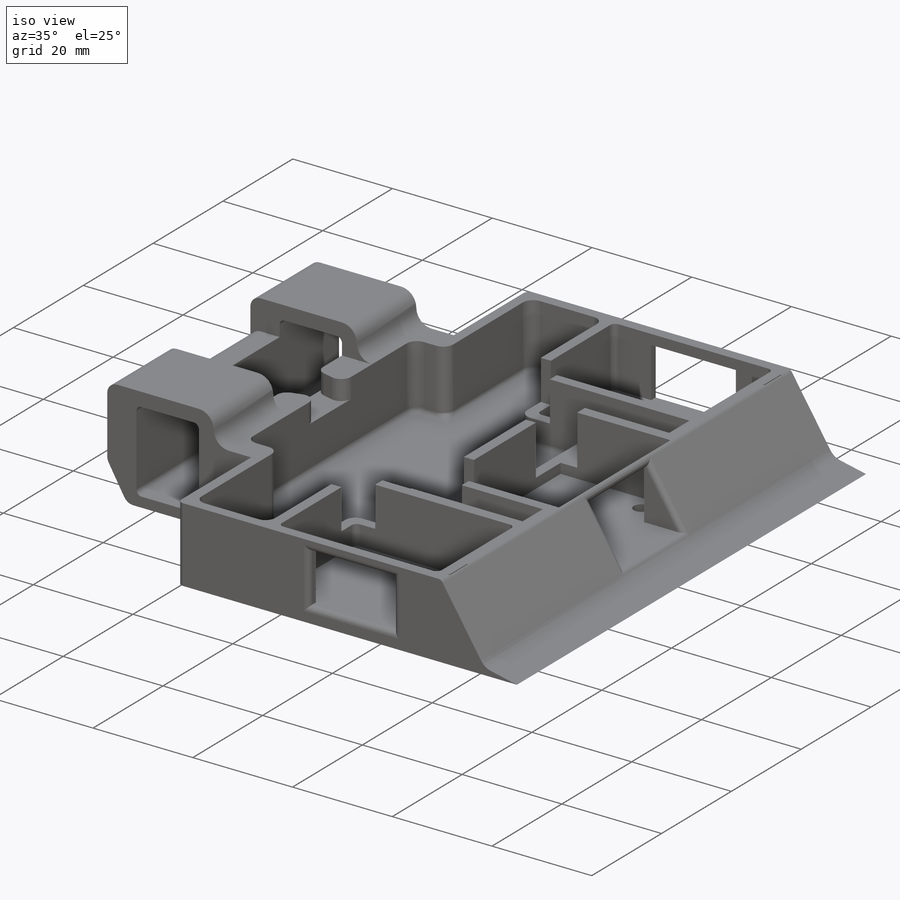
[diagram: iso view]
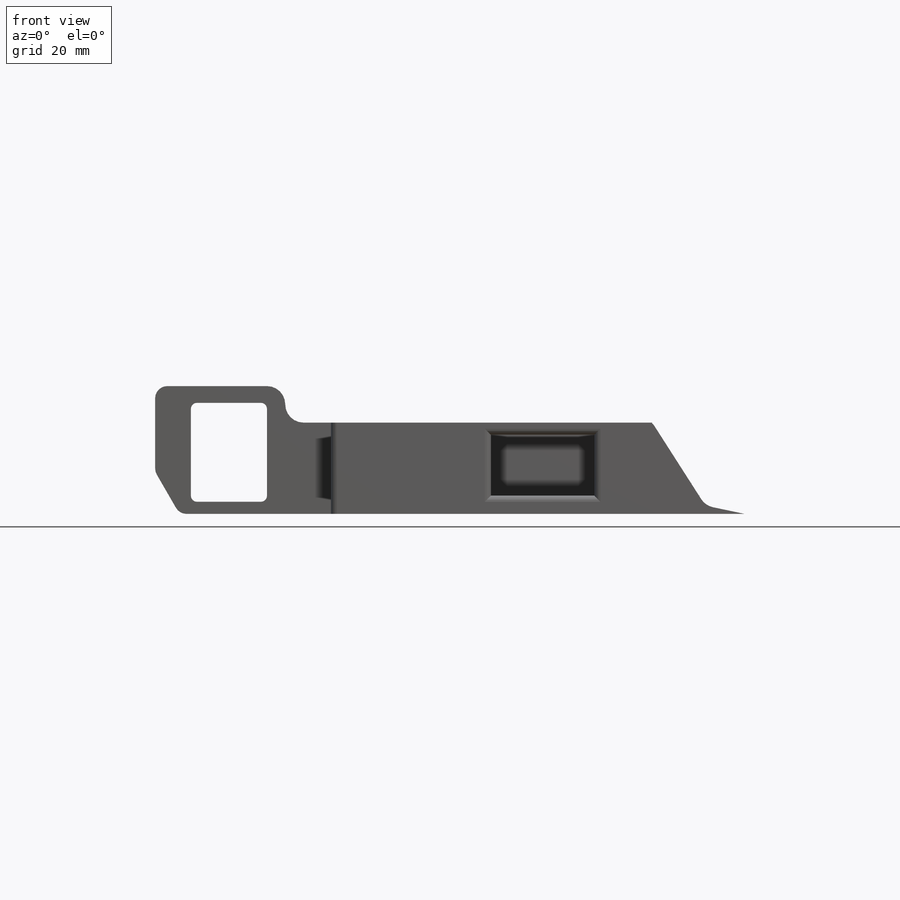
[diagram: front view]
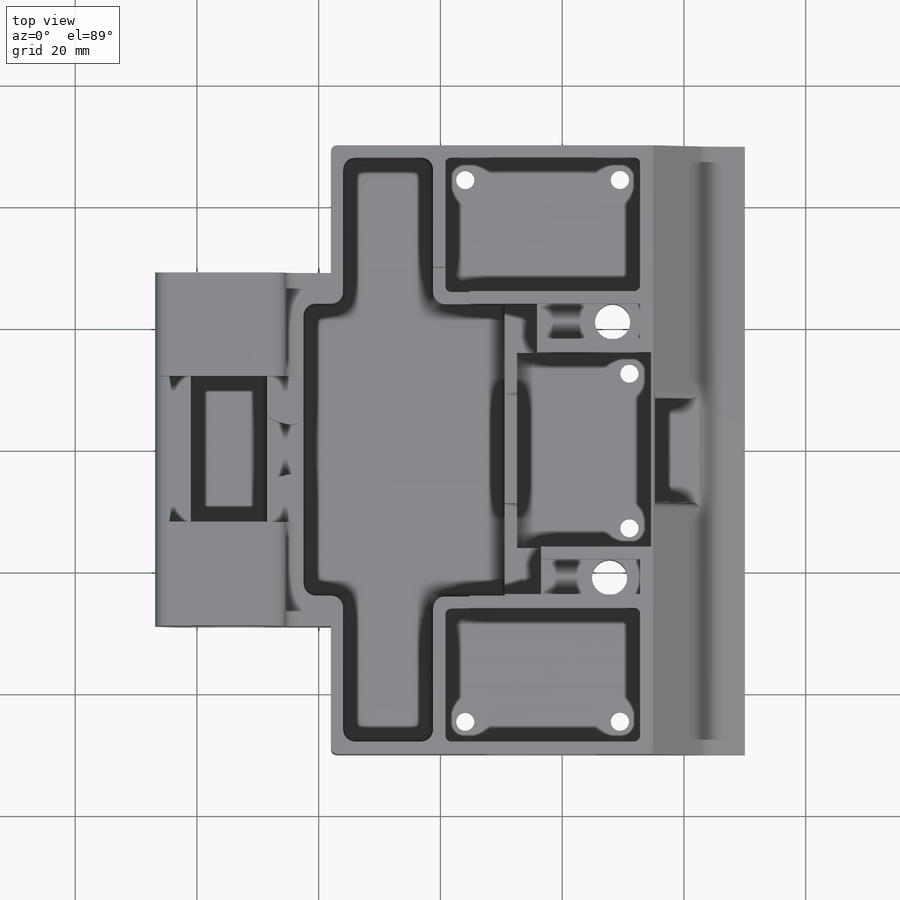
[diagram: top view]
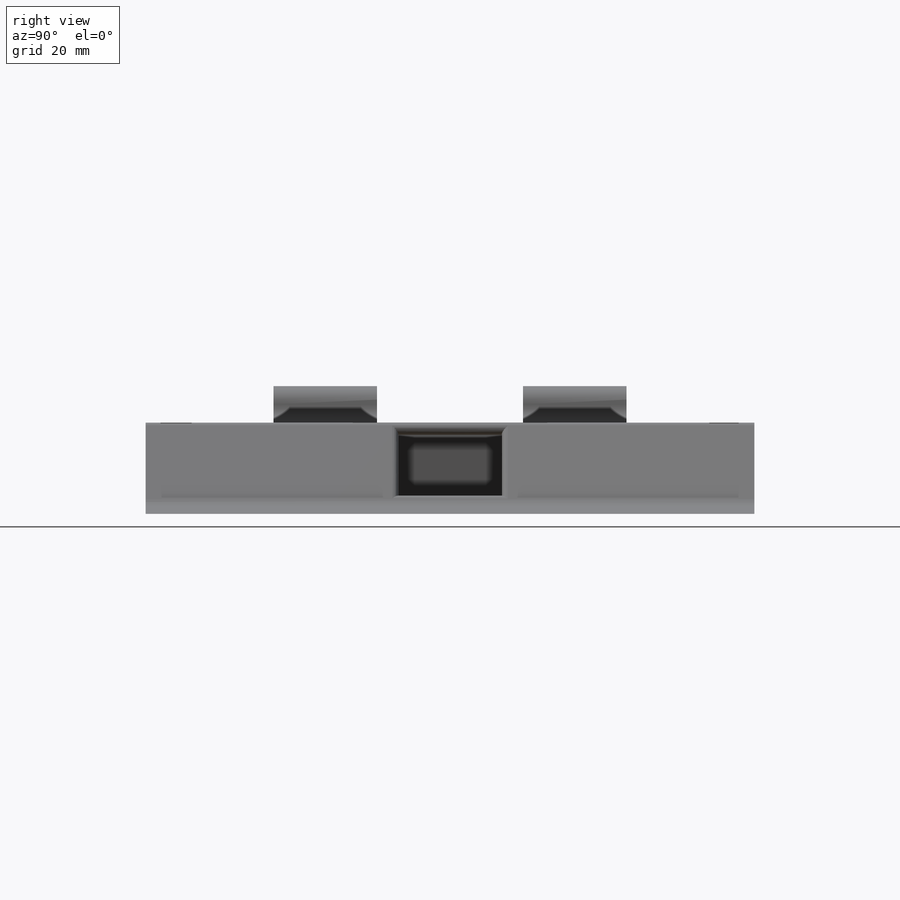
[diagram: right view]
SOLIDWORKS PART (.sldprt)
format: sldprt  version: not decoded by parser v0  size: 1,630,720 bytes
history: native  units: mm
features: sketch x60, cut_extrude x41, fillet x25, extrude x18, material x1, chamfer x1 (+12 scaffold rows collapsed)
feature tree (158):
  scaffold x12  (default folders/planes/origin — collapsed)
  material  "Material <not specified>"
  sketch  "Sketch1"  dims[D1=100.0mm D2=100.0mm]
  extrude  "Boss-Extrude2"  Depth=15mm
  sketch  "Sketch4"  dims[D1=17.0mm D2=10.0mm D3=41.5mm D4=2.0mm]
  cut_extrude  "Cut-Extrude2"  Depth=100mm
  sketch  "Sketch5"
  cut_extrude  "Cut-Extrude3"  Depth=100mm
  sketch  "Sketch6"  dims[D1=22.0mm D2=32.0mm D3=34.0mm]
  cut_extrude  "Cut-Extrude4"  Depth=12mm
  sketch  "Sketch7"  dims[D1=32.0mm D2=22.0mm D3=2.0mm D4=2.0mm]
  cut_extrude  "Cut-Extrude5"  Depth=12mm
  sketch  "Sketch8"  dims[D1=32.0mm D2=22.0mm D3=2.0mm D4=2.0mm]
  cut_extrude  "Cut-Extrude6"  Depth=12mm
  sketch  "Sketch9"  dims[D1=17.0mm D2=10.0mm D3=2.0mm D4=9.5mm]
  cut_extrude  "Cut-Extrude8"  Depth=12mm
  sketch  "Sketch10"  dims[D1=17.0mm D2=10.0mm D3=2.0mm D4=9.5mm]
  cut_extrude  "Cut-Extrude9"  Depth=12mm
  sketch  "Sketch11"  dims[c1.D1=12.0mm c1.D2=16.0mm c2.D1=12.5mm c2.D2=16.0mm c2.D3=100.0mm c3.D3=90.0deg c4.D3=2.0mm c4.D4=9.0mm]
  cut_extrude  "Cut-Extrude11"  Depth=100mm
  sketch  "Sketch13"
  extrude  "Boss-Extrude10"  Depth=6mm
  sketch  "Sketch18"
  extrude  "Boss-Extrude11"  Depth=6mm
  sketch  "Sketch19"
  extrude  "Boss-Extrude12"  Depth=15.5mm
  sketch  "Sketch22"
  extrude  "Boss-Extrude14"  Depth=70mm
  fillet  "Fillet7"  Radius=3mm
  sketch  "Sketch23"
  extrude  "Boss-Extrude15"  Depth=12mm
  sketch  "Sketch24"
  cut_extrude  "Cut-Extrude13"  Depth=100mm
  sketch  "Sketch28"  dims[D1=21.0mm]
  cut_extrude  "Cut-Extrude22"  Depth=32mm
  sketch  "Sketch30"  dims[D1=21.0mm]
  cut_extrude  "Cut-Extrude23"  Depth=32mm
  sketch  "Sketch31"  dims[D1=24.0mm D2=6.0mm D3=17.0mm D4=17.0mm]
  cut_extrude  "Cut-Extrude24"  Depth=32mm
  sketch  "Sketch32"  dims[D1=0.0mm D2=2.0mm D3=2.0mm D4=2.0mm D5=5.0mm D6=5.0mm D7=2.0mm D8=2.0mm D9=2.0mm D10=2.0mm]
  cut_extrude  "Cut-Extrude27"  Depth=13mm
  sketch  "Sketch35"
  extrude  "Boss-Extrude19"  Depth=12mm
  sketch  "Sketch36"
  extrude  "Boss-Extrude20"  Depth=12mm
  sketch  "Sketch37"  dims[D1=6.0mm D2=6.0mm]
  cut_extrude  "Cut-Extrude28"  Depth=8mm
  sketch  "Sketch38"  dims[D1=6.0mm D2=6.0mm]
  cut_extrude  "Cut-Extrude29"  Depth=8mm
  sketch  "Sketch39"  dims[D1=15.0mm D2=6.0mm]
  cut_extrude  "Cut-Extrude31"  Depth=8mm
  sketch  "Sketch40"  dims[D1=22.0mm]
  cut_extrude  "Cut-Extrude32"  Depth=4mm
  sketch  "Sketch41"  dims[D1=22.0mm]
  extrude  "Boss-Extrude24"  Depth=4mm
  sketch  "Sketch42"  dims[D1=2.0mm D2=2.0mm]
  cut_extrude  "Cut-Extrude33"  Depth=4mm
  sketch  "Sketch43"  dims[D1=2.19mm D2=0.0mm D3=2.0mm D4=2.0mm]
  cut_extrude  "Cut-Extrude34"  Depth=4mm
  sketch  "Sketch44"  dims[D1=12.0mm D2=22.0mm D3=2.0mm D4=7.0mm]
  cut_extrude  "Cut-Extrude35"  Depth=1.7mm
  sketch  "Sketch45"  dims[D1=11.0mm D2=21.0mm D3=7.0mm D4=2.0mm]
  cut_extrude  "Cut-Extrude36"  Depth=1.7mm
  sketch  "Sketch46"  dims[D1=5.5mm D2=3.0mm]
  cut_extrude  "Cut-Extrude37"  Depth=5mm
  sketch  "Sketch54"
  extrude  "Boss-Extrude26"  Depth=5mm
  sketch  "Sketch58"  dims[D1=3.0mm D2=0.8mm]
  cut_extrude  "Cut-Extrude58"  Depth=15mm
  sketch  "Sketch59"  dims[D1=0.0mm D2=3.0mm]
  cut_extrude  "Cut-Extrude59"  Depth=15mm
  sketch  "Sketch60"
  cut_extrude  "Cut-Extrude62"  Depth=8mm
  sketch  "Sketch61"  dims[D1=3.0mm]
  sketch  "Sketch63"
  cut_extrude  "Cut-Extrude64"  Depth=60mm
  chamfer  "Chamfer6"  Distance=4mm Angle=60deg
  fillet  "Fillet9"  Radius=2mm
  fillet  "Fillet10"  Radius=2mm
  fillet  "Fillet11"  Radius=2mm
  fillet  "Fillet13"  Radius=1mm
  fillet  "Fillet14"  Radius=1mm
  fillet  "Fillet15"  Radius=1mm
  fillet  "Fillet16"  Radius=1mm
  fillet  "Fillet17"  Radius=1mm
  fillet  "Fillet18"  Radius=1mm
  fillet  "Fillet22"  Radius=3.5mm
  fillet  "Fillet23"  Radius=2mm
  sketch  "Sketch65"
  extrude  "Boss-Extrude29"  Depth=2mm
  sketch  "Sketch66"
  extrude  "Boss-Extrude33"  Depth=1.3mm
  sketch  "Sketch67"
  extrude  "Boss-Extrude35"  Depth=1.3mm
  sketch  "Sketch68"
  extrude  "Boss-Extrude36"  Depth=2mm
  sketch  "Sketch70"
  extrude  "Boss-Extrude41"  Depth=1.3mm
  sketch  "Sketch71"  dims[c1.D1=5.81mm c1.D5=~3.424478mm c1.D2=2.905mm c1.D3=2.905mm c1.D4=4.5mm c2.D5=2.905mm c2.D6=5.0mm]
  cut_extrude  "Cut-Extrude66"  Depth=15mm
  sketch  "Sketch73"
  cut_extrude  "Cut-Extrude67"  Depth=1.7mm
  sketch  "Sketch74"
  extrude  "Boss-Extrude44"  Depth=1.7mm
  sketch  "Sketch75"
  cut_extrude  "Cut-Extrude68"  Depth=1.7mm
  sketch  "Sketch76"
  cut_extrude  "Cut-Extrude70"  Depth=1.7mm
  fillet  "Fillet24"  Radius=1mm
  fillet  "Fillet25"  Radius=1mm
  sketch  "Sketch77"
  extrude  "Boss-Extrude45"  Depth=1.7mm
  sketch  "Sketch81"
  extrude  "Boss-Extrude47"  Depth=100mm
  sketch  "Sketch82"
  cut_extrude  "Cut-Extrude72"  Depth=100mm
  sketch  "Sketch83"
  cut_extrude  "Cut-Extrude73"  Depth=100mm
  fillet  "Fillet27"  Radius=3mm
  sketch  "Sketch84"
  cut_extrude  "Cut-Extrude74"  Depth=2mm
  sketch  "Sketch85"
  cut_extrude  "Cut-Extrude76"  Depth=2mm
  sketch  "Sketch86"  dims[c1.D1=~3.726071mm c1.D3=~2.290411mm c1.D5=3.0mm c2.D1=3.3mm c2.D2=3.5mm c2.D3=3.3mm c2.D4=3.5mm c2.D5=25.4mm]
  cut_extrude  "Cut-Extrude77"  Depth=3mm
  sketch  "Sketch87"  dims[c1.D1=~1.733798mm c1.D3=~2.442474mm c2.D1=3.3mm c2.D2=3.5mm c2.D3=3.3mm c2.D4=25.4mm]
  cut_extrude  "Cut-Extrude78"  Depth=3mm
  sketch  "Sketch88"  dims[c1.D1=~1.318615mm c1.D3=~0.969906mm c2.D1=3.5mm c2.D2=3.3mm c2.D3=3.3mm]
  cut_extrude  "Cut-Extrude79"  Depth=3mm
  sketch  "Sketch89"  dims[c1.D1=~1.109126mm c1.D4=1.2mm c2.D1=5.5mm c2.D2=3.0mm c2.D3=3.0mm]
  cut_extrude  "Cut-Extrude84"  Depth=5mm
  sketch  "Sketch90"
  cut_extrude  "Cut-Extrude85"  Depth=2mm
  sketch  "Sketch91"
  cut_extrude  "Cut-Extrude86"  Depth=2mm
  sketch  "Sketch92"  dims[c1.D1=7.0mm c1.D2=7.0mm c2.D1=7.0mm c2.D2=7.0mm]
  cut_extrude  "Cut-Extrude87"  Depth=4mm
  fillet  "Fillet29"  Radius=2mm
  fillet  "Fillet30"  Radius=2mm
  fillet  "Fillet31"  Radius=2mm
  fillet  "Fillet32"  Radius=2mm
  fillet  "Fillet36"  Radius=1mm
  fillet  "Fillet37"  Radius=1mm
  fillet  "Fillet38"  Radius=1mm
  fillet  "Fillet39"  Radius=1mm
  fillet  "Fillet40"  Radius=1mm
  fillet  "Fillet41"  Radius=1mm
decode coverage: 116 of 145 modeling features carry decoded parameters
note: ~ marks probable driven/reference dimensions
note: suppression state not decoded; provenance and decode notes live in map.json
